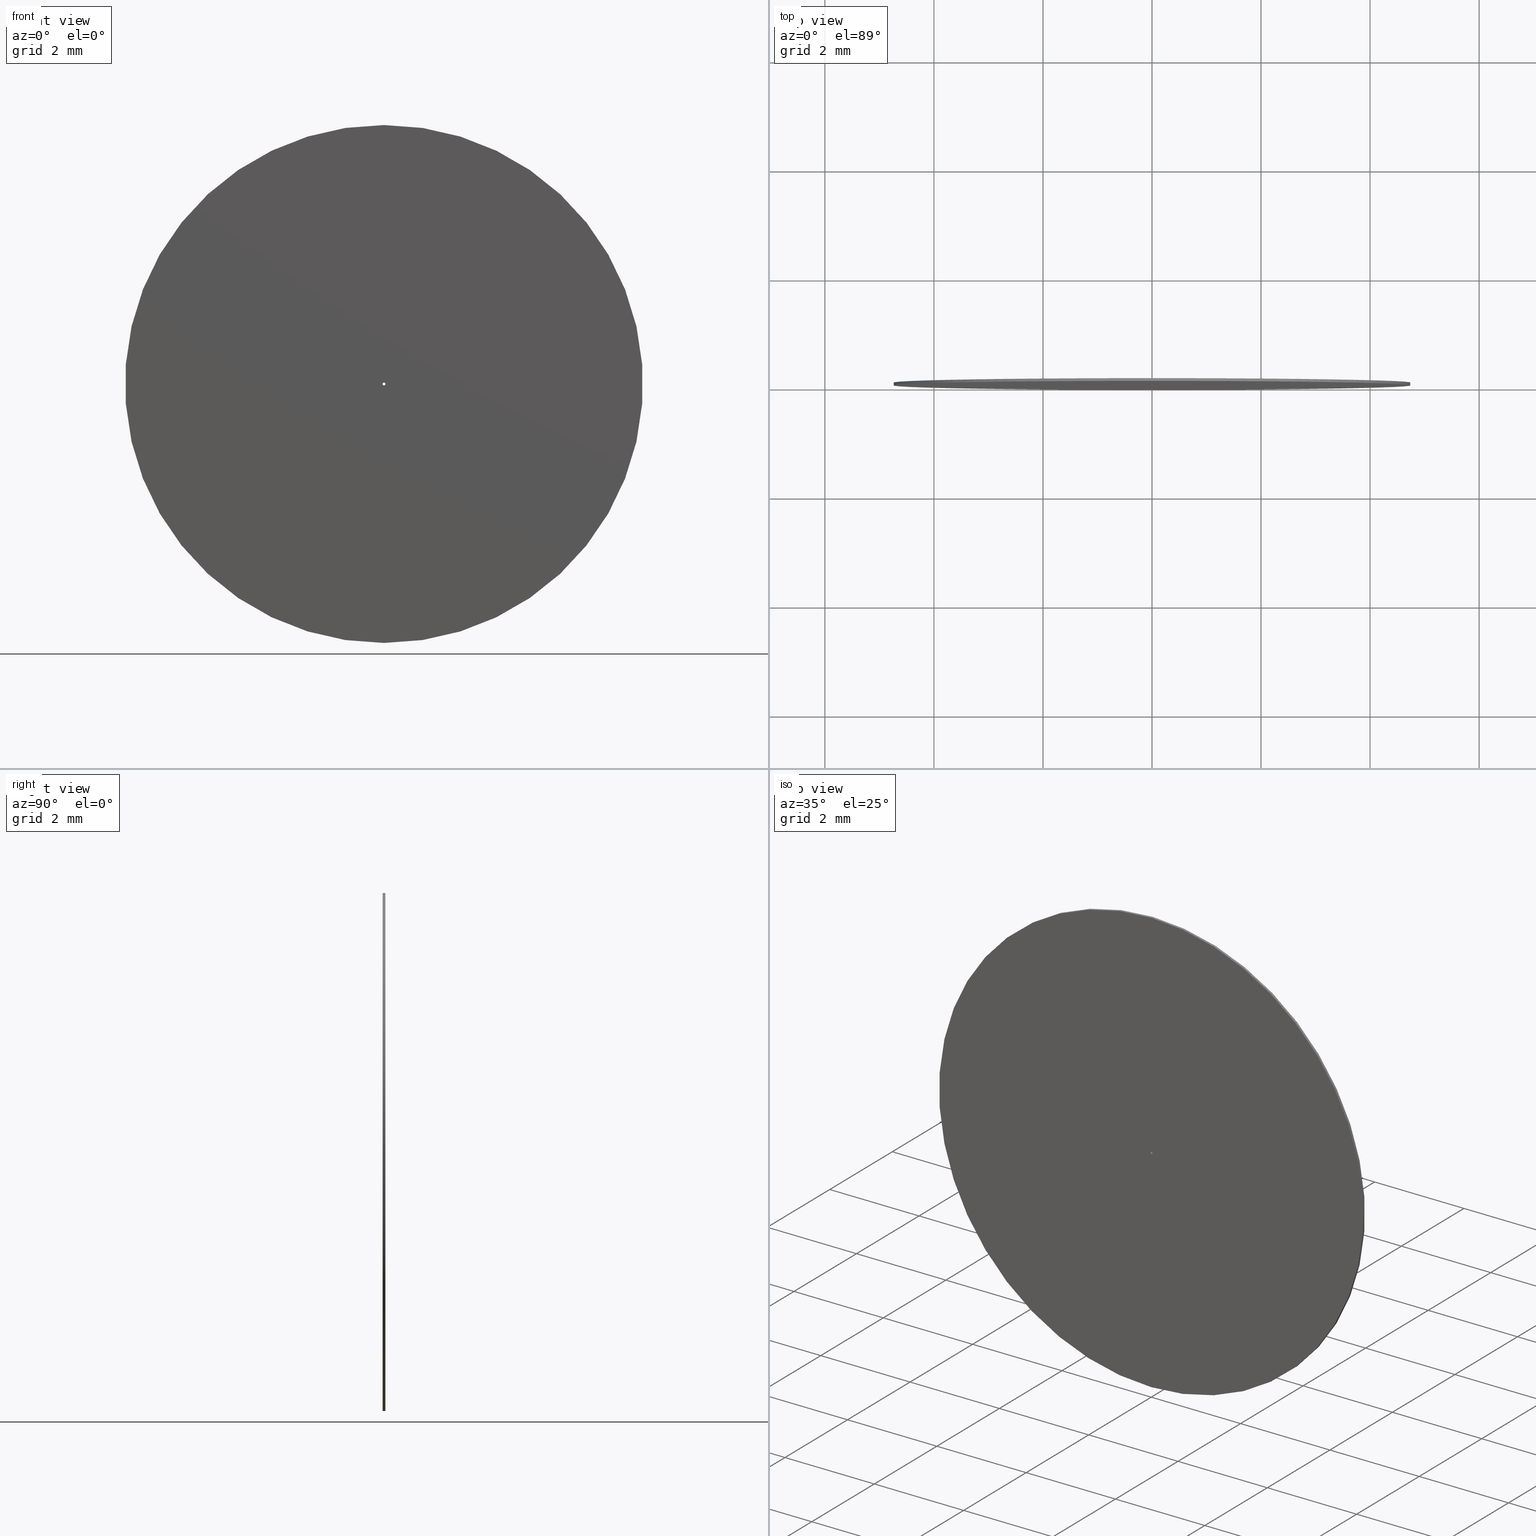
[diagram: canonical four-view strip — front | top / right | iso, engineering-drawing reading convention]
A machine part, canonical four-view strip (front | top / right | iso — engineering-drawing reading convention). The complete STEP part file that produces these views, byte-faithful:
ISO-10303-21;
HEADER;
FILE_DESCRIPTION (( 'STEP AP203' ),
    '1' );
FILE_NAME ('1.5.3.8-ZXO-9.5-50.STEP',
    '2024-05-31T06:06:35',
    ( '' ),
    ( '' ),
    'SwSTEP 2.0',
    'SolidWorks 2021',
    '' );
FILE_SCHEMA (( 'CONFIG_CONTROL_DESIGN' ));
ENDSEC;

DATA;
#1 = FACE_OUTER_BOUND ( 'NONE', #132, .T. ) ;
#2 = CARTESIAN_POINT ( 'NONE',  ( 0.000000000000000000, 0.05000000000000000278, -0.02500000000000000139 ) ) ;
#3 = LINE ( 'NONE', #184, #153 ) ;
#4 = APPROVAL ( #185, 'δָ��' ) ;
#5 = DIRECTION ( 'NONE',  ( 0.000000000000000000, 0.000000000000000000, -1.000000000000000000 ) ) ;
#6 = CIRCLE ( 'NONE', #71, 0.02500000000000000139 ) ;
#7 = CARTESIAN_POINT ( 'NONE',  ( 3.061616997868383172E-18, 0.000000000000000000, 0.02500000000000000139 ) ) ;
#8 = PERSON_AND_ORGANIZATION_ROLE ( 'design_supplier' ) ;
#9 = VERTEX_POINT ( 'NONE', #154 ) ;
#10 = ORIENTED_EDGE ( 'NONE', *, *, #135, .F. ) ;
#11 = AXIS2_PLACEMENT_3D ( 'NONE', #84, #220, #218 ) ;
#12 = DATE_AND_TIME ( #226, #240 ) ;
#13 = ORIENTED_EDGE ( 'NONE', *, *, #45, .F. ) ;
#14 = APPROVAL_ROLE ( '' ) ;
#15 = PRODUCT_DEFINITION_SHAPE ( 'NONE', 'NONE',  #209 ) ;
#16 = CARTESIAN_POINT ( 'NONE',  ( 0.000000000000000000, 0.05000000000000000278, 0.000000000000000000 ) ) ;
#17 = ORIENTED_EDGE ( 'NONE', *, *, #151, .T. ) ;
#18 = CARTESIAN_POINT ( 'NONE',  ( 3.061616997868383172E-18, 0.05000000000000000278, 0.02500000000000000139 ) ) ;
#19 = CARTESIAN_POINT ( 'NONE',  ( 0.000000000000000000, 0.05000000000000000278, 0.000000000000000000 ) ) ;
#20 = CC_DESIGN_APPROVAL ( #166, ( #173 ) ) ;
#21 = EDGE_CURVE ( 'NONE', #92, #30, #197, .T. ) ;
#22 = DIRECTION ( 'NONE',  ( 0.000000000000000000, 0.000000000000000000, -1.000000000000000000 ) ) ;
#23 = CARTESIAN_POINT ( 'NONE',  ( 0.000000000000000000, 0.05000000000000000278, 0.000000000000000000 ) ) ;
#24 = EDGE_CURVE ( 'NONE', #96, #116, #155, .T. ) ;
#25 = FACE_OUTER_BOUND ( 'NONE', #80, .T. ) ;
#26 = CYLINDRICAL_SURFACE ( 'NONE', #115, 0.02500000000000000139 ) ;
#27 = AXIS2_PLACEMENT_3D ( 'NONE', #100, #179, #85 ) ;
#28 = COORDINATED_UNIVERSAL_TIME_OFFSET ( 8, 0, .AHEAD. ) ;
#29 = PERSON_AND_ORGANIZATION ( #98, #158 ) ;
#30 = VERTEX_POINT ( 'NONE', #249 ) ;
#31 = APPROVAL_STATUS ( 'not_yet_approved' ) ;
#32 = ORIENTED_EDGE ( 'NONE', *, *, #246, .F. ) ;
#33 = VECTOR ( 'NONE', #160, 1000.000000000000000 ) ;
#34 = ADVANCED_FACE ( 'NONE', ( #199, #131 ), #58, .F. ) ;
#35 = CARTESIAN_POINT ( 'NONE',  ( 0.000000000000000000, 0.05000000000000000278, 0.000000000000000000 ) ) ;
#36 = VECTOR ( 'NONE', #177, 1000.000000000000000 ) ;
#37 = CC_DESIGN_DATE_AND_TIME_ASSIGNMENT ( #69, #130, ( #53 ) ) ;
#38 = ORIENTED_EDGE ( 'NONE', *, *, #127, .F. ) ;
#39 = UNCERTAINTY_MEASURE_WITH_UNIT (LENGTH_MEASURE( 1.000000000000000082E-05 ), #159, 'distance_accuracy_value', 'NONE');
#40 = EDGE_LOOP ( 'NONE', ( #247, #107 ) ) ;
#41 = DIRECTION ( 'NONE',  ( -0.000000000000000000, -1.000000000000000000, -0.000000000000000000 ) ) ;
#42 = CARTESIAN_POINT ( 'NONE',  ( 0.000000000000000000, 0.05000000000000000278, 0.000000000000000000 ) ) ;
#43 = CIRCLE ( 'NONE', #11, 4.750000000000000000 ) ;
#44 = DIRECTION ( 'NONE',  ( 0.000000000000000000, 1.000000000000000000, 0.000000000000000000 ) ) ;
#45 = EDGE_CURVE ( 'NONE', #30, #77, #244, .T. ) ;
#46 = AXIS2_PLACEMENT_3D ( 'NONE', #99, #245, #117 ) ;
#47 = DIRECTION ( 'NONE',  ( 0.000000000000000000, 0.000000000000000000, 1.000000000000000000 ) ) ;
#48 = APPLICATION_PROTOCOL_DEFINITION ( 'international standard', 'config_control_design', 1994, #134 ) ;
#49 = VECTOR ( 'NONE', #59, 1000.000000000000000 ) ;
#50 = PERSON_AND_ORGANIZATION ( #98, #158 ) ;
#51 = SECURITY_CLASSIFICATION_LEVEL ( 'unclassified' ) ;
#52 = EDGE_CURVE ( 'NONE', #116, #9, #219, .T. ) ;
#53 = SECURITY_CLASSIFICATION ( '', '', #51 ) ;
#54 = EDGE_LOOP ( 'NONE', ( #94, #57, #55, #32 ) ) ;
#55 = ORIENTED_EDGE ( 'NONE', *, *, #182, .F. ) ;
#56 = AXIS2_PLACEMENT_3D ( 'NONE', #42, #79, #121 ) ;
#57 = ORIENTED_EDGE ( 'NONE', *, *, #24, .T. ) ;
#58 = PLANE ( 'NONE',  #46 ) ;
#59 = DIRECTION ( 'NONE',  ( -0.000000000000000000, -1.000000000000000000, -0.000000000000000000 ) ) ;
#60 = CARTESIAN_POINT ( 'NONE',  ( 0.000000000000000000, 0.05000000000000000278, 0.000000000000000000 ) ) ;
#61 = ADVANCED_FACE ( 'NONE', ( #228 ), #232, .T. ) ;
#62 = DIRECTION ( 'NONE',  ( 0.000000000000000000, 1.000000000000000000, 0.000000000000000000 ) ) ;
#63 = MECHANICAL_CONTEXT ( 'NONE', #93, 'mechanical' ) ;
#64 = APPROVAL_PERSON_ORGANIZATION ( #148, #166, #163 ) ;
#65 = APPROVAL_PERSON_ORGANIZATION ( #29, #175, #14 ) ;
#66 = LINE ( 'NONE', #125, #33 ) ;
#67 = ADVANCED_FACE ( 'NONE', ( #212 ), #195, .T. ) ;
#68 = CALENDAR_DATE ( 2024, 31, 5 ) ;
#69 = DATE_AND_TIME ( #108, #174 ) ;
#70 = ORIENTED_EDGE ( 'NONE', *, *, #236, .F. ) ;
#71 = AXIS2_PLACEMENT_3D ( 'NONE', #201, #216, #181 ) ;
#72 = APPROVAL_DATE_TIME ( #128, #4 ) ;
#73 = AXIS2_PLACEMENT_3D ( 'NONE', #74, #150, #152 ) ;
#74 = CARTESIAN_POINT ( 'NONE',  ( 0.000000000000000000, 0.000000000000000000, 0.000000000000000000 ) ) ;
#75 = DESIGN_CONTEXT ( 'detailed design', #134, 'design' ) ;
#76 = ORIENTED_EDGE ( 'NONE', *, *, #236, .T. ) ;
#77 = VERTEX_POINT ( 'NONE', #196 ) ;
#78 = EDGE_CURVE ( 'NONE', #96, #194, #82, .T. ) ;
#79 = DIRECTION ( 'NONE',  ( 0.000000000000000000, 1.000000000000000000, 0.000000000000000000 ) ) ;
#80 = EDGE_LOOP ( 'NONE', ( #172, #187, #171, #89 ) ) ;
#81 = CARTESIAN_POINT ( 'NONE',  ( 5.817072295949927426E-16, 0.000000000000000000, 4.750000000000000000 ) ) ;
#82 = CIRCLE ( 'NONE', #248, 0.02500000000000000139 ) ;
#83 = CC_DESIGN_PERSON_AND_ORGANIZATION_ASSIGNMENT ( #111, #167, ( #209 ) ) ;
#84 = CARTESIAN_POINT ( 'NONE',  ( 0.000000000000000000, 0.000000000000000000, 0.000000000000000000 ) ) ;
#85 = DIRECTION ( 'NONE',  ( 1.000000000000000000, 0.000000000000000000, 0.000000000000000000 ) ) ;
#86 = FACE_OUTER_BOUND ( 'NONE', #54, .T. ) ;
#87 = DIRECTION ( 'NONE',  ( 0.000000000000000000, -0.000000000000000000, 1.000000000000000000 ) ) ;
#88 = SHAPE_DEFINITION_REPRESENTATION ( #15, #176 ) ;
#89 = ORIENTED_EDGE ( 'NONE', *, *, #52, .F. ) ;
#90 = DATE_AND_TIME ( #146, #207 ) ;
#91 = EDGE_CURVE ( 'NONE', #194, #96, #119, .T. ) ;
#92 = VERTEX_POINT ( 'NONE', #178 ) ;
#93 = APPLICATION_CONTEXT ( 'configuration controlled 3d designs of mechanical parts and assemblies' ) ;
#94 = ORIENTED_EDGE ( 'NONE', *, *, #91, .T. ) ;
#95 = ORIENTED_EDGE ( 'NONE', *, *, #135, .T. ) ;
#96 = VERTEX_POINT ( 'NONE', #210 ) ;
#97 = DIRECTION ( 'NONE',  ( 0.000000000000000000, 0.000000000000000000, 1.000000000000000000 ) ) ;
#98 = PERSON ( 'δָ��', 'δָ��', 'δָ��', ('δָ��'), ('δָ��'), ('δָ��') ) ;
#99 = CARTESIAN_POINT ( 'NONE',  ( 0.000000000000000000, 0.000000000000000000, 0.000000000000000000 ) ) ;
#100 = CARTESIAN_POINT ( 'NONE',  ( 0.000000000000000000, 0.000000000000000000, 0.000000000000000000 ) ) ;
#101 = PRODUCT_RELATED_PRODUCT_CATEGORY ( 'detail', '', ( #191 ) ) ;
#102 = PERSON_AND_ORGANIZATION_ROLE ( 'design_owner' ) ;
#103 = CARTESIAN_POINT ( 'NONE',  ( 0.000000000000000000, 0.000000000000000000, 0.000000000000000000 ) ) ;
#104 = DIRECTION ( 'NONE',  ( -0.000000000000000000, -1.000000000000000000, -0.000000000000000000 ) ) ;
#105 = AXIS2_PLACEMENT_3D ( 'NONE', #103, #62, #183 ) ;
#106 = CC_DESIGN_APPROVAL ( #175, ( #53 ) ) ;
#107 = ORIENTED_EDGE ( 'NONE', *, *, #78, .F. ) ;
#108 = CALENDAR_DATE ( 2024, 31, 5 ) ;
#109 = ORIENTED_EDGE ( 'NONE', *, *, #21, .T. ) ;
#110 = LOCAL_TIME ( 14, 6, 35.00000000000000000, #28 ) ;
#111 = PERSON_AND_ORGANIZATION ( #98, #158 ) ;
#112 = EDGE_LOOP ( 'NONE', ( #205, #114 ) ) ;
#113 = ADVANCED_FACE ( 'NONE', ( #1, #157 ), #233, .T. ) ;
#114 = ORIENTED_EDGE ( 'NONE', *, *, #52, .T. ) ;
#115 = AXIS2_PLACEMENT_3D ( 'NONE', #60, #221, #235 ) ;
#116 = VERTEX_POINT ( 'NONE', #7 ) ;
#117 = DIRECTION ( 'NONE',  ( 0.000000000000000000, -0.000000000000000000, 1.000000000000000000 ) ) ;
#118 = DIRECTION ( 'NONE',  ( 0.000000000000000000, 0.000000000000000000, 1.000000000000000000 ) ) ;
#119 = CIRCLE ( 'NONE', #56, 0.02500000000000000139 ) ;
#120 = LOCAL_TIME ( 14, 6, 35.00000000000000000, #164 ) ;
#121 = DIRECTION ( 'NONE',  ( 0.000000000000000000, 0.000000000000000000, 1.000000000000000000 ) ) ;
#122 = CC_DESIGN_PERSON_AND_ORGANIZATION_ASSIGNMENT ( #186, #8, ( #173 ) ) ;
#123 =( NAMED_UNIT ( * ) PLANE_ANGLE_UNIT ( ) SI_UNIT ( $, .RADIAN. ) );
#124 =( NAMED_UNIT ( * ) SI_UNIT ( $, .STERADIAN. ) SOLID_ANGLE_UNIT ( ) );
#125 = CARTESIAN_POINT ( 'NONE',  ( 5.817072295949927426E-16, 0.05000000000000000278, 4.750000000000000000 ) ) ;
#126 = CC_DESIGN_PERSON_AND_ORGANIZATION_ASSIGNMENT ( #50, #129, ( #53 ) ) ;
#127 = EDGE_CURVE ( 'NONE', #92, #213, #66, .T. ) ;
#128 = DATE_AND_TIME ( #68, #110 ) ;
#129 = PERSON_AND_ORGANIZATION_ROLE ( 'classification_officer' ) ;
#130 = DATE_TIME_ROLE ( 'classification_date' ) ;
#131 = FACE_BOUND ( 'NONE', #112, .T. ) ;
#132 = EDGE_LOOP ( 'NONE', ( #95, #109 ) ) ;
#133 = CC_DESIGN_APPROVAL ( #4, ( #209 ) ) ;
#134 = APPLICATION_CONTEXT ( 'configuration controlled 3d designs of mechanical parts and assemblies' ) ;
#135 = EDGE_CURVE ( 'NONE', #30, #92, #215, .T. ) ;
#136 = DIRECTION ( 'NONE',  ( -0.000000000000000000, -1.000000000000000000, -0.000000000000000000 ) ) ;
#137 = CARTESIAN_POINT ( 'NONE',  ( 0.000000000000000000, 0.05000000000000000278, 0.000000000000000000 ) ) ;
#138 = EDGE_LOOP ( 'NONE', ( #38, #10, #238, #17 ) ) ;
#139 = AXIS2_PLACEMENT_3D ( 'NONE', #35, #211, #118 ) ;
#140 = APPLICATION_PROTOCOL_DEFINITION ( 'international standard', 'config_control_design', 1994, #93 ) ;
#141 = DIRECTION ( 'NONE',  ( -0.000000000000000000, -1.000000000000000000, -0.000000000000000000 ) ) ;
#142 = CYLINDRICAL_SURFACE ( 'NONE', #234, 0.02500000000000000139 ) ;
#143 = AXIS2_PLACEMENT_3D ( 'NONE', #162, #202, #47 ) ;
#144 = CC_DESIGN_PERSON_AND_ORGANIZATION_ASSIGNMENT ( #145, #102, ( #191 ) ) ;
#145 = PERSON_AND_ORGANIZATION ( #98, #158 ) ;
#146 = CALENDAR_DATE ( 2024, 31, 5 ) ;
#147 = COORDINATED_UNIVERSAL_TIME_OFFSET ( 8, 0, .AHEAD. ) ;
#148 = PERSON_AND_ORGANIZATION ( #98, #158 ) ;
#149 = DATE_AND_TIME ( #243, #120 ) ;
#150 = DIRECTION ( 'NONE',  ( 0.000000000000000000, 1.000000000000000000, 0.000000000000000000 ) ) ;
#151 = EDGE_CURVE ( 'NONE', #77, #213, #180, .T. ) ;
#152 = DIRECTION ( 'NONE',  ( 0.000000000000000000, 0.000000000000000000, 1.000000000000000000 ) ) ;
#153 = VECTOR ( 'NONE', #141, 1000.000000000000000 ) ;
#154 = CARTESIAN_POINT ( 'NONE',  ( 0.000000000000000000, 0.000000000000000000, -0.02500000000000000139 ) ) ;
#155 = LINE ( 'NONE', #18, #49 ) ;
#156 = ADVANCED_FACE ( 'NONE', ( #86 ), #26, .F. ) ;
#157 = FACE_BOUND ( 'NONE', #40, .T. ) ;
#158 = ORGANIZATION ( 'δָ��', 'δָ��', '' ) ;
#159 =( LENGTH_UNIT ( ) NAMED_UNIT ( * ) SI_UNIT ( .MILLI., .METRE. ) );
#160 = DIRECTION ( 'NONE',  ( -0.000000000000000000, -1.000000000000000000, -0.000000000000000000 ) ) ;
#161 = CARTESIAN_POINT ( 'NONE',  ( 0.000000000000000000, 0.05000000000000000278, 0.000000000000000000 ) ) ;
#162 = CARTESIAN_POINT ( 'NONE',  ( 0.000000000000000000, 0.05000000000000000278, 0.000000000000000000 ) ) ;
#163 = APPROVAL_ROLE ( '' ) ;
#164 = COORDINATED_UNIVERSAL_TIME_OFFSET ( 8, 0, .AHEAD. ) ;
#165 = ORIENTED_EDGE ( 'NONE', *, *, #21, .F. ) ;
#166 = APPROVAL ( #31, 'δָ��' ) ;
#167 = PERSON_AND_ORGANIZATION_ROLE ( 'creator' ) ;
#168 = ORIENTED_EDGE ( 'NONE', *, *, #151, .F. ) ;
#169 = CLOSED_SHELL ( 'NONE', ( #156, #61, #113, #34, #67, #188 ) ) ;
#170 = EDGE_LOOP ( 'NONE', ( #165, #229, #76, #13 ) ) ;
#171 = ORIENTED_EDGE ( 'NONE', *, *, #246, .T. ) ;
#172 = ORIENTED_EDGE ( 'NONE', *, *, #24, .F. ) ;
#173 = PRODUCT_DEFINITION_FORMATION_WITH_SPECIFIED_SOURCE ( '�κ�', '', #191, .NOT_KNOWN. ) ;
#174 = LOCAL_TIME ( 14, 6, 35.00000000000000000, #242 ) ;
#175 = APPROVAL ( #225, 'δָ��' ) ;
#176 = ADVANCED_BREP_SHAPE_REPRESENTATION ( '1.5.3.8-ZXO-9.5-50', ( #217, #27 ), #223 ) ;
#177 = DIRECTION ( 'NONE',  ( -0.000000000000000000, -1.000000000000000000, -0.000000000000000000 ) ) ;
#178 = CARTESIAN_POINT ( 'NONE',  ( 5.817072295949927426E-16, 0.05000000000000000278, 4.750000000000000000 ) ) ;
#179 = DIRECTION ( 'NONE',  ( 0.000000000000000000, 0.000000000000000000, 1.000000000000000000 ) ) ;
#180 = CIRCLE ( 'NONE', #105, 4.750000000000000000 ) ;
#181 = DIRECTION ( 'NONE',  ( 0.000000000000000000, 0.000000000000000000, 1.000000000000000000 ) ) ;
#182 = EDGE_CURVE ( 'NONE', #9, #116, #6, .T. ) ;
#183 = DIRECTION ( 'NONE',  ( 0.000000000000000000, 0.000000000000000000, 1.000000000000000000 ) ) ;
#184 = CARTESIAN_POINT ( 'NONE',  ( 0.000000000000000000, 0.05000000000000000278, -0.02500000000000000139 ) ) ;
#185 = APPROVAL_STATUS ( 'not_yet_approved' ) ;
#186 = PERSON_AND_ORGANIZATION ( #98, #158 ) ;
#187 = ORIENTED_EDGE ( 'NONE', *, *, #78, .T. ) ;
#188 = ADVANCED_FACE ( 'NONE', ( #25 ), #142, .F. ) ;
#189 = APPROVAL_DATE_TIME ( #149, #175 ) ;
#190 = EDGE_LOOP ( 'NONE', ( #168, #70 ) ) ;
#191 = PRODUCT ( '1.5.3.8-ZXO-9.5-50', '1.5.3.8-ZXO-9.5-50', '', ( #63 ) ) ;
#192 = CARTESIAN_POINT ( 'NONE',  ( 0.000000000000000000, 0.05000000000000000278, -4.750000000000000000 ) ) ;
#193 = AXIS2_PLACEMENT_3D ( 'NONE', #23, #44, #87 ) ;
#194 = VERTEX_POINT ( 'NONE', #2 ) ;
#195 = CYLINDRICAL_SURFACE ( 'NONE', #204, 4.750000000000000000 ) ;
#196 = CARTESIAN_POINT ( 'NONE',  ( 0.000000000000000000, 0.000000000000000000, -4.750000000000000000 ) ) ;
#197 = CIRCLE ( 'NONE', #139, 4.750000000000000000 ) ;
#198 = CC_DESIGN_DATE_AND_TIME_ASSIGNMENT ( #12, #224, ( #209 ) ) ;
#199 = FACE_OUTER_BOUND ( 'NONE', #190, .T. ) ;
#200 = APPROVAL_ROLE ( '' ) ;
#201 = CARTESIAN_POINT ( 'NONE',  ( 0.000000000000000000, 0.000000000000000000, 0.000000000000000000 ) ) ;
#202 = DIRECTION ( 'NONE',  ( 0.000000000000000000, 1.000000000000000000, 0.000000000000000000 ) ) ;
#203 = PERSON_AND_ORGANIZATION ( #98, #158 ) ;
#204 = AXIS2_PLACEMENT_3D ( 'NONE', #137, #41, #22 ) ;
#205 = ORIENTED_EDGE ( 'NONE', *, *, #182, .T. ) ;
#206 = PERSON_AND_ORGANIZATION_ROLE ( 'creator' ) ;
#207 = LOCAL_TIME ( 14, 6, 35.00000000000000000, #147 ) ;
#208 = PERSON_AND_ORGANIZATION ( #98, #158 ) ;
#209 = PRODUCT_DEFINITION ( 'δ֪', '', #173, #75 ) ;
#210 = CARTESIAN_POINT ( 'NONE',  ( 3.061616997868383172E-18, 0.05000000000000000278, 0.02500000000000000139 ) ) ;
#211 = DIRECTION ( 'NONE',  ( 0.000000000000000000, 1.000000000000000000, 0.000000000000000000 ) ) ;
#212 = FACE_OUTER_BOUND ( 'NONE', #138, .T. ) ;
#213 = VERTEX_POINT ( 'NONE', #81 ) ;
#214 = DIRECTION ( 'NONE',  ( 0.000000000000000000, 1.000000000000000000, 0.000000000000000000 ) ) ;
#215 = CIRCLE ( 'NONE', #143, 4.750000000000000000 ) ;
#216 = DIRECTION ( 'NONE',  ( 0.000000000000000000, 1.000000000000000000, 0.000000000000000000 ) ) ;
#217 = MANIFOLD_SOLID_BREP ( '͹̨-����1', #169 ) ;
#218 = DIRECTION ( 'NONE',  ( 0.000000000000000000, 0.000000000000000000, 1.000000000000000000 ) ) ;
#219 = CIRCLE ( 'NONE', #73, 0.02500000000000000139 ) ;
#220 = DIRECTION ( 'NONE',  ( 0.000000000000000000, 1.000000000000000000, 0.000000000000000000 ) ) ;
#221 = DIRECTION ( 'NONE',  ( -0.000000000000000000, -1.000000000000000000, -0.000000000000000000 ) ) ;
#222 = COORDINATED_UNIVERSAL_TIME_OFFSET ( 8, 0, .AHEAD. ) ;
#223 =( GEOMETRIC_REPRESENTATION_CONTEXT ( 3 ) GLOBAL_UNCERTAINTY_ASSIGNED_CONTEXT ( ( #39 ) ) GLOBAL_UNIT_ASSIGNED_CONTEXT ( ( #159, #123, #124 ) ) REPRESENTATION_CONTEXT ( 'NONE', 'WORKASPACE' ) );
#224 = DATE_TIME_ROLE ( 'creation_date' ) ;
#225 = APPROVAL_STATUS ( 'not_yet_approved' ) ;
#226 = CALENDAR_DATE ( 2024, 31, 5 ) ;
#227 = CC_DESIGN_SECURITY_CLASSIFICATION ( #53, ( #173 ) ) ;
#228 = FACE_OUTER_BOUND ( 'NONE', #170, .T. ) ;
#229 = ORIENTED_EDGE ( 'NONE', *, *, #127, .T. ) ;
#230 = AXIS2_PLACEMENT_3D ( 'NONE', #16, #136, #231 ) ;
#231 = DIRECTION ( 'NONE',  ( 0.000000000000000000, 0.000000000000000000, -1.000000000000000000 ) ) ;
#232 = CYLINDRICAL_SURFACE ( 'NONE', #230, 4.750000000000000000 ) ;
#233 = PLANE ( 'NONE',  #193 ) ;
#234 = AXIS2_PLACEMENT_3D ( 'NONE', #161, #104, #5 ) ;
#235 = DIRECTION ( 'NONE',  ( 0.000000000000000000, 0.000000000000000000, -1.000000000000000000 ) ) ;
#236 = EDGE_CURVE ( 'NONE', #213, #77, #43, .T. ) ;
#237 = APPROVAL_DATE_TIME ( #90, #166 ) ;
#238 = ORIENTED_EDGE ( 'NONE', *, *, #45, .T. ) ;
#239 = CC_DESIGN_PERSON_AND_ORGANIZATION_ASSIGNMENT ( #208, #206, ( #173 ) ) ;
#240 = LOCAL_TIME ( 14, 6, 35.00000000000000000, #222 ) ;
#241 = APPROVAL_PERSON_ORGANIZATION ( #203, #4, #200 ) ;
#242 = COORDINATED_UNIVERSAL_TIME_OFFSET ( 8, 0, .AHEAD. ) ;
#243 = CALENDAR_DATE ( 2024, 31, 5 ) ;
#244 = LINE ( 'NONE', #192, #36 ) ;
#245 = DIRECTION ( 'NONE',  ( 0.000000000000000000, 1.000000000000000000, 0.000000000000000000 ) ) ;
#246 = EDGE_CURVE ( 'NONE', #194, #9, #3, .T. ) ;
#247 = ORIENTED_EDGE ( 'NONE', *, *, #91, .F. ) ;
#248 = AXIS2_PLACEMENT_3D ( 'NONE', #19, #214, #97 ) ;
#249 = CARTESIAN_POINT ( 'NONE',  ( 0.000000000000000000, 0.05000000000000000278, -4.750000000000000000 ) ) ;
ENDSEC;
END-ISO-10303-21;
